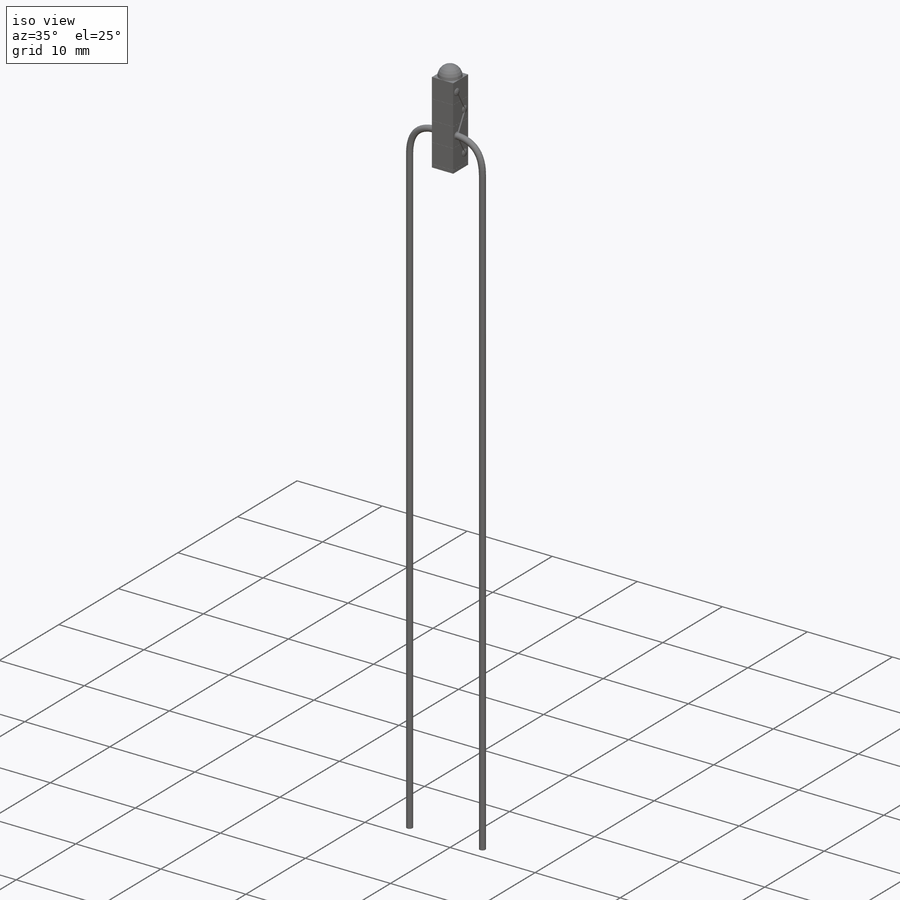
[diagram: iso view]
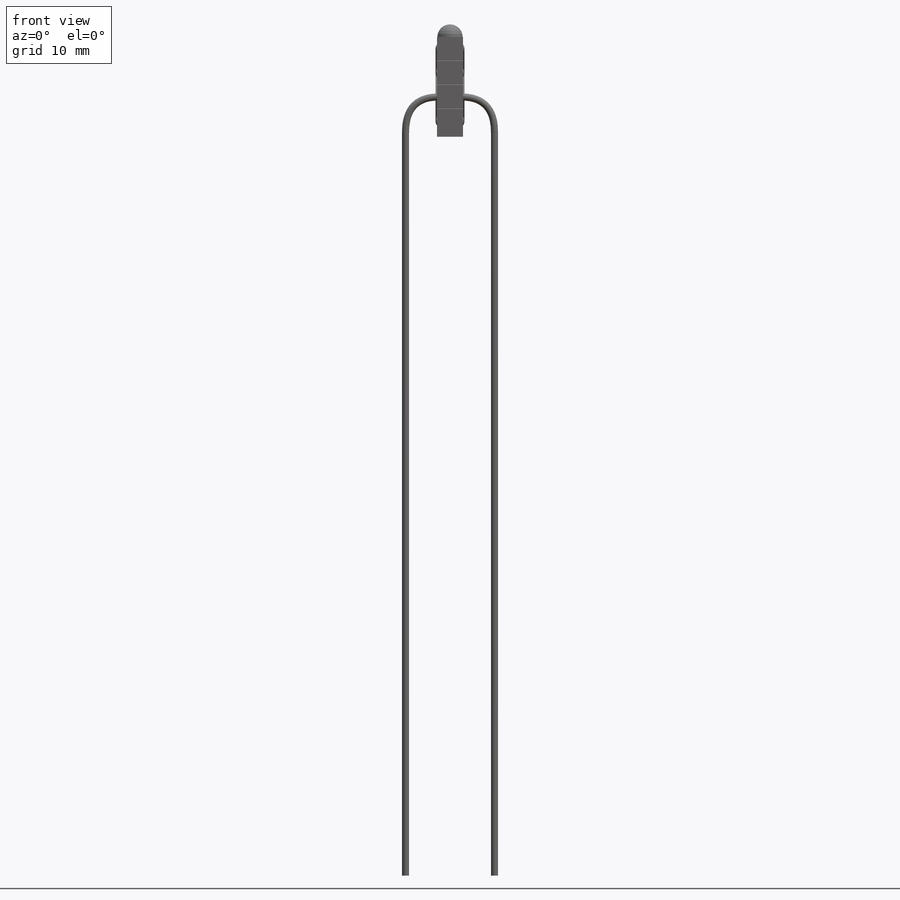
[diagram: front view]
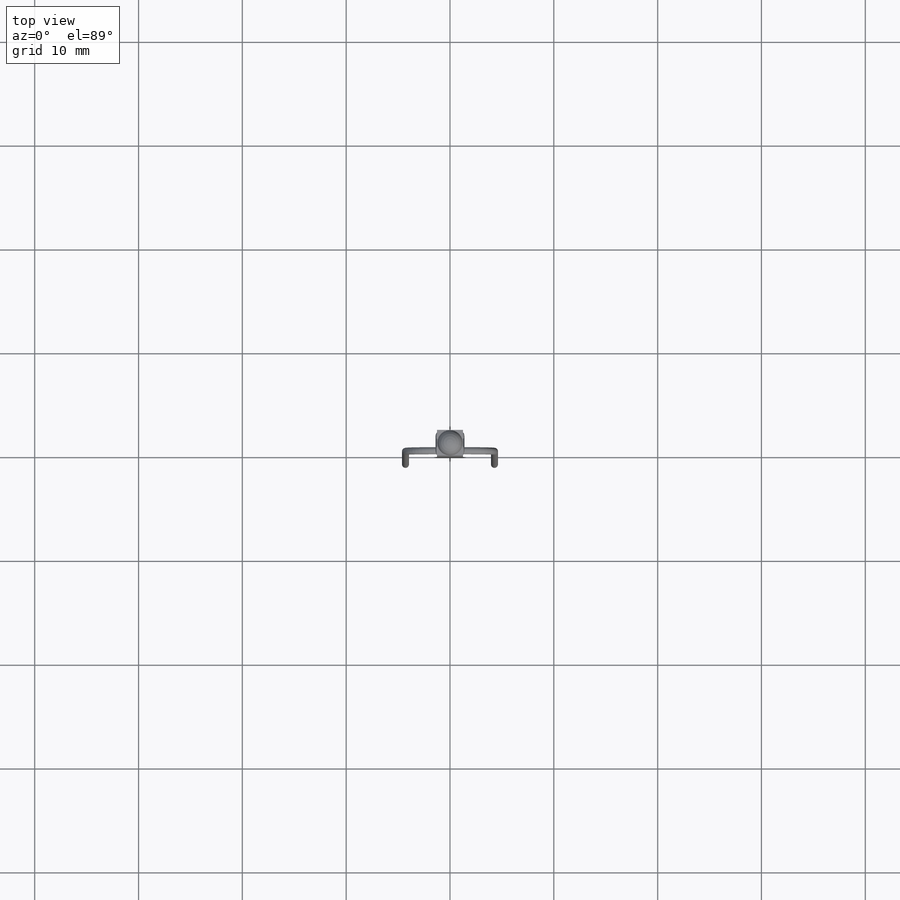
[diagram: top view]
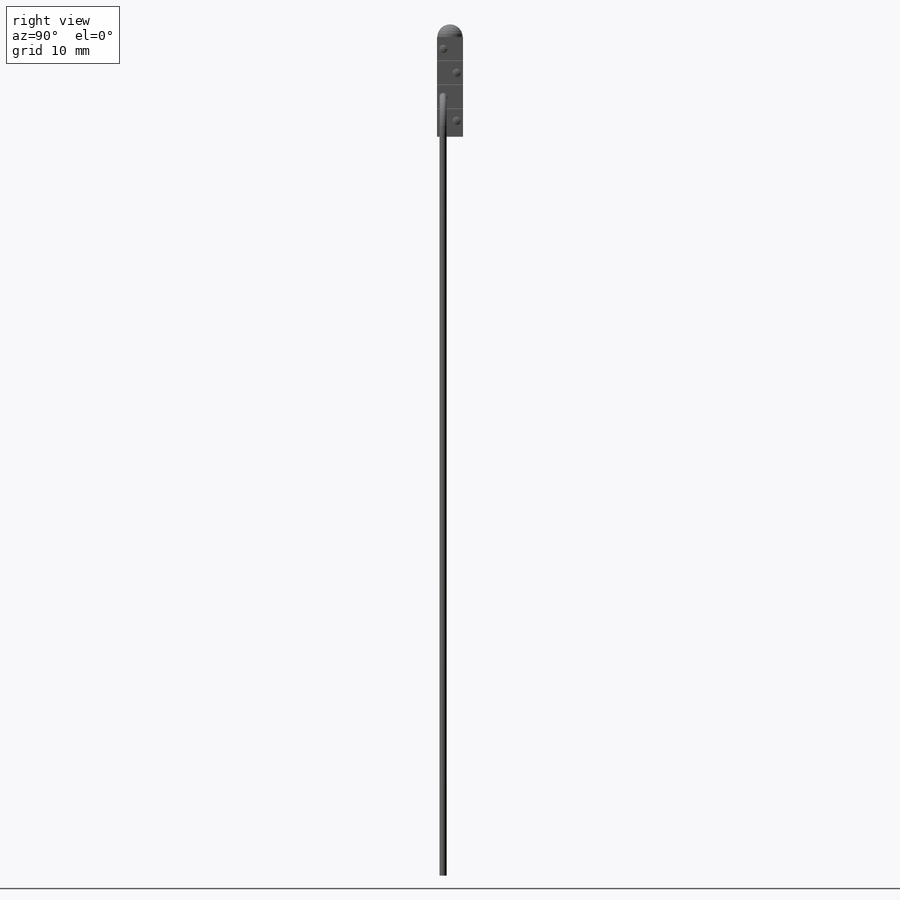
[diagram: right view]
SOLIDWORKS PART (.sldprt)
format: sldprt  version: not decoded by parser v0  size: 589,824 bytes
history: native  units: mm
features: sketch x14, plane x12, extrude x8, dome x4, mirror x3, material x1, pattern_linear x1, revolve x1, sweep x1 (+11 scaffold rows collapsed)
feature tree (56):
  scaffold x11  (default folders/planes/origin — collapsed)
  material  "Material <not specified>"
  sketch  "Sketch1"  dims[c1.D1=~27.482152mm c1.D2=~36.551262mm c2.D1=2.5mm]
  extrude  "Boss-Extrude1"  Depth=2.3mm
  plane  "Plane1"  Offset=1.2mm
  plane  "Plane2"  Offset=2.5mm
  pattern_linear  "LPattern3"  Count1=4 Count2=1 Spacing1=2.31mm Spacing2=2.5mm
  plane  "Plane3"  Offset=0mm
  sketch  "Sketch4"
  extrude  "Boss-Extrude2"  Depth=0.25mm
  sketch  "Sketch6"
  revolve  "Revolve1"  Angle=360deg
  plane  "Plane16"  Offset=0mm
  sketch  "Sketch12"  dims[D1=2.5mm D2=2.5mm]
  extrude  "Boss-Extrude8"  Depth=0.37mm
  plane  "Plane20"  Offset=5mm
  sketch  "Sketch19"  dims[D1=~0.377222mm]
  extrude  "Boss-Extrude11"  Depth=0.05mm
  plane  "Plane22"  Offset=5.75mm
  dome  "Dome7"
  sketch  "Sketch23"  dims[D1=~0.407669mm]
  extrude  "Boss-Extrude13"  Depth=0.05mm
  dome  "Dome8"
  sketch  "Sketch24"  dims[D1=~0.444743mm]
  extrude  "Boss-Extrude14"  Depth=0.05mm
  dome  "Dome9"
  sketch  "Sketch25"  dims[D1=~0.442621mm]
  extrude  "Boss-Extrude15"  Depth=0.05mm
  dome  "Dome10"
  mirror  "Mirror14"
  plane  "Plane23"  Offset=1.25mm
  sketch  "Sketch39"  dims[D1=0.02mm D2=0.02mm]
  extrude  "Boss-Extrude16"  Depth=0.15mm
  mirror  "Mirror15"
  plane  "Plane24"  Offset=1.25mm
  sketch  "Sketch45"  dims[D1=~0.582827mm]
  plane  "Plane27"  Offset=10mm
  sketch  "Sketch55"
  plane  "Plane28"  Offset=10mm
  sketch  "Sketch58"
  plane  "Plane6"
  sketch  "Sketch70"  dims[D1=75.0mm]
  plane  "Plane7"
  sketch  "Sketch71"  dims[D1=0.68mm]
  sweep  "Sweep1"
  mirror  "Mirror17"
decode coverage: 20 of 32 modeling features carry decoded parameters
note: ~ marks probable driven/reference dimensions
note: suppression state not decoded; provenance and decode notes live in map.json
